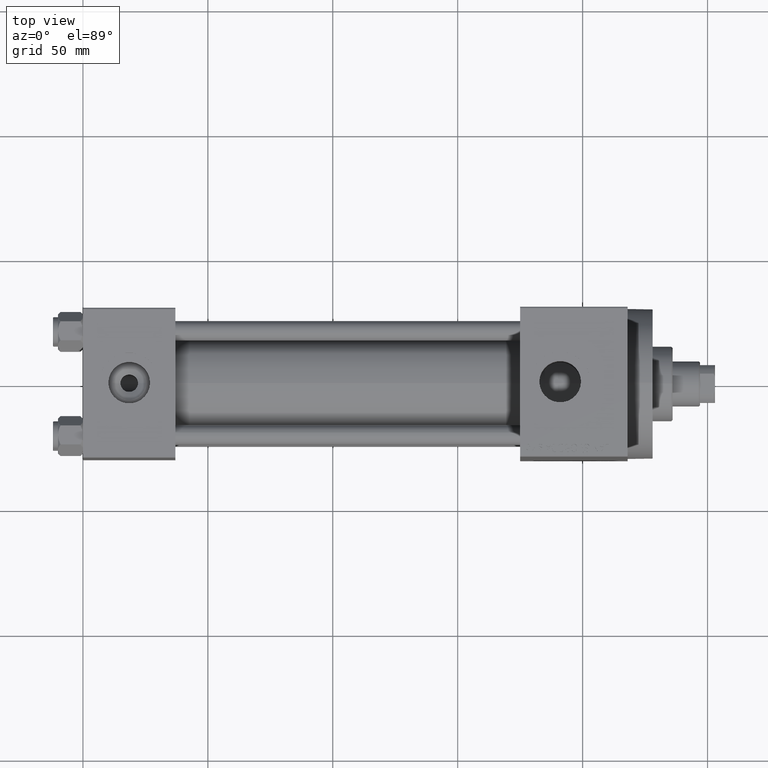
[diagram: clean part render]
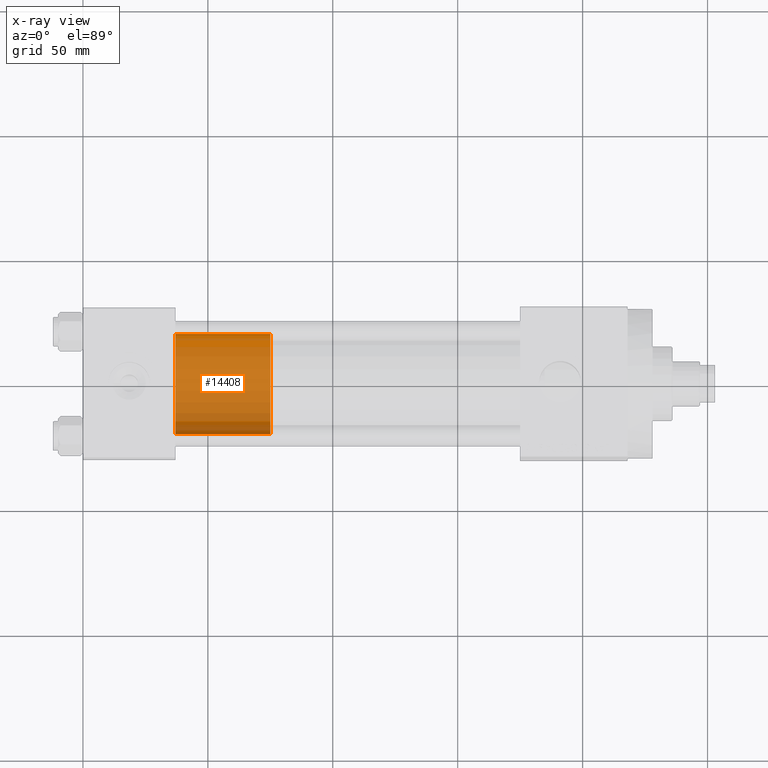
[diagram: x-ray — body ghosted, one internal face saturated and labeled with its STEP entity id]
A machine part, top view, then the same camera in x-ray: the body is ghosted and one INTERNAL B-rep face — a face not visible from any outside direction — is saturated and labeled: STEP entity #14408.
In plain terms, the highlighted cylindrical surface (partial cylindrical patch) has radius 20 mm, axis along (-1, 0, 0).
Its self-contained STEP definition (entity closure, byte-faithful):
#2655 = LINE ( 'NONE', #42297, #35855 ) ;
#3663 = LINE ( 'NONE', #28999, #41280 ) ;
#5192 = DIRECTION ( 'NONE',  ( 1.000000000000000000, 0.000000000000000000, 0.000000000000000000 ) ) ;
#5528 = DIRECTION ( 'NONE',  ( -0.000000000000000000, -0.000000000000000000, -1.000000000000000000 ) ) ;
#9525 = ORIENTED_EDGE ( 'NONE', *, *, #11114, .T. ) ;
#9624 = DIRECTION ( 'NONE',  ( 0.000000000000000000, 0.000000000000000000, 1.000000000000000000 ) ) ;
#10654 = VERTEX_POINT ( 'NONE', #27178 ) ;
#11114 = EDGE_CURVE ( 'NONE', #33542, #10654, #3663, .T. ) ;
#11558 = EDGE_CURVE ( 'NONE', #33542, #44966, #37466, .T. ) ;
#12533 = ORIENTED_EDGE ( 'NONE', *, *, #27532, .T. ) ;
#12618 = CARTESIAN_POINT ( 'NONE',  ( 0.000000000000000000, 0.000000000000000000, 38.00000000000000000 ) ) ;
#14408 = ADVANCED_FACE ( 'NONE', ( #38879 ), #16931, .T. ) ;
#14678 = DIRECTION ( 'NONE',  ( -0.000000000000000000, -0.000000000000000000, -1.000000000000000000 ) ) ;
#15335 = ORIENTED_EDGE ( 'NONE', *, *, #11558, .F. ) ;
#16707 = ORIENTED_EDGE ( 'NONE', *, *, #45131, .F. ) ;
#16931 = CYLINDRICAL_SURFACE ( 'NONE', #46813, 20.00000000000000000 ) ;
#21388 = DIRECTION ( 'NONE',  ( -0.000000000000000000, -0.000000000000000000, -1.000000000000000000 ) ) ;
#21624 = CARTESIAN_POINT ( 'NONE',  ( 0.000000000000000000, 0.000000000000000000, 38.00000000000000000 ) ) ;
#23483 = CARTESIAN_POINT ( 'NONE',  ( 0.000000000000000000, 0.000000000000000000, 0.000000000000000000 ) ) ;
#26167 = AXIS2_PLACEMENT_3D ( 'NONE', #23483, #9624, #37814 ) ;
#27178 = CARTESIAN_POINT ( 'NONE',  ( 20.00000000000000000, 2.449293598294706513E-15, 0.000000000000000000 ) ) ;
#27532 = EDGE_CURVE ( 'NONE', #10654, #36121, #42142, .T. ) ;
#28999 = CARTESIAN_POINT ( 'NONE',  ( 20.00000000000000000, 2.449293598294706513E-15, 38.00000000000000000 ) ) ;
#33258 = CARTESIAN_POINT ( 'NONE',  ( -20.00000000000000000, 0.000000000000000000, 38.00000000000000000 ) ) ;
#33542 = VERTEX_POINT ( 'NONE', #34662 ) ;
#34662 = CARTESIAN_POINT ( 'NONE',  ( 20.00000000000000000, 2.449293598294706513E-15, 38.00000000000000000 ) ) ;
#35468 = CARTESIAN_POINT ( 'NONE',  ( -20.00000000000000000, 0.000000000000000000, 0.000000000000000000 ) ) ;
#35855 = VECTOR ( 'NONE', #5528, 1000.000000000000000 ) ;
#36121 = VERTEX_POINT ( 'NONE', #35468 ) ;
#37466 = CIRCLE ( 'NONE', #44297, 20.00000000000000000 ) ;
#37814 = DIRECTION ( 'NONE',  ( 1.000000000000000000, 0.000000000000000000, 0.000000000000000000 ) ) ;
#37925 = DIRECTION ( 'NONE',  ( 0.000000000000000000, 0.000000000000000000, 1.000000000000000000 ) ) ;
#38879 = FACE_OUTER_BOUND ( 'NONE', #43655, .T. ) ;
#41280 = VECTOR ( 'NONE', #14678, 1000.000000000000000 ) ;
#41752 = DIRECTION ( 'NONE',  ( -1.000000000000000000, 0.000000000000000000, 0.000000000000000000 ) ) ;
#42142 = CIRCLE ( 'NONE', #26167, 20.00000000000000000 ) ;
#42297 = CARTESIAN_POINT ( 'NONE',  ( -20.00000000000000000, 0.000000000000000000, 38.00000000000000000 ) ) ;
#43655 = EDGE_LOOP ( 'NONE', ( #15335, #9525, #12533, #16707 ) ) ;
#44297 = AXIS2_PLACEMENT_3D ( 'NONE', #12618, #37925, #5192 ) ;
#44966 = VERTEX_POINT ( 'NONE', #33258 ) ;
#45131 = EDGE_CURVE ( 'NONE', #44966, #36121, #2655, .T. ) ;
#46813 = AXIS2_PLACEMENT_3D ( 'NONE', #21624, #21388, #41752 ) ;